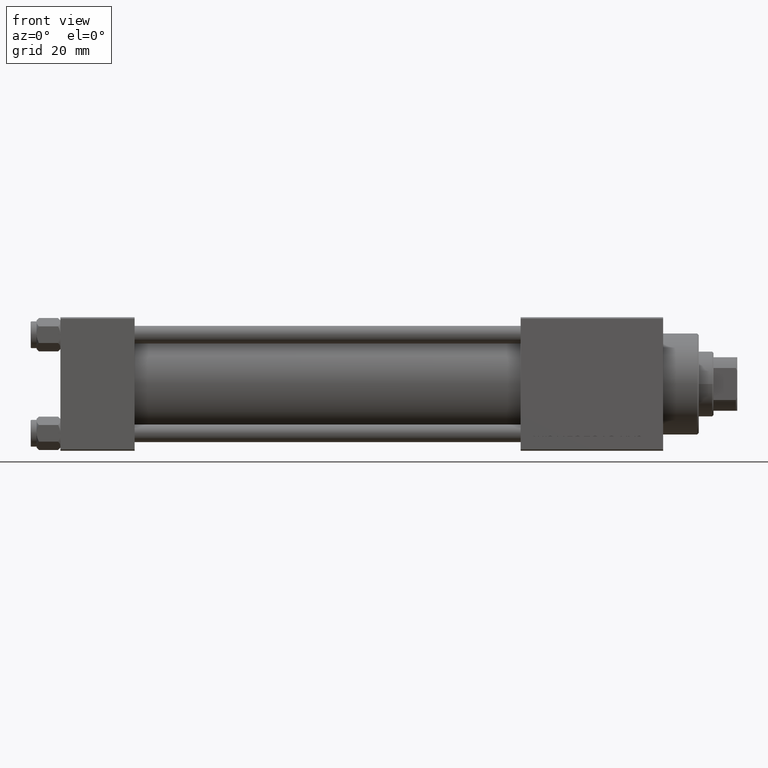
[diagram: clean part render]
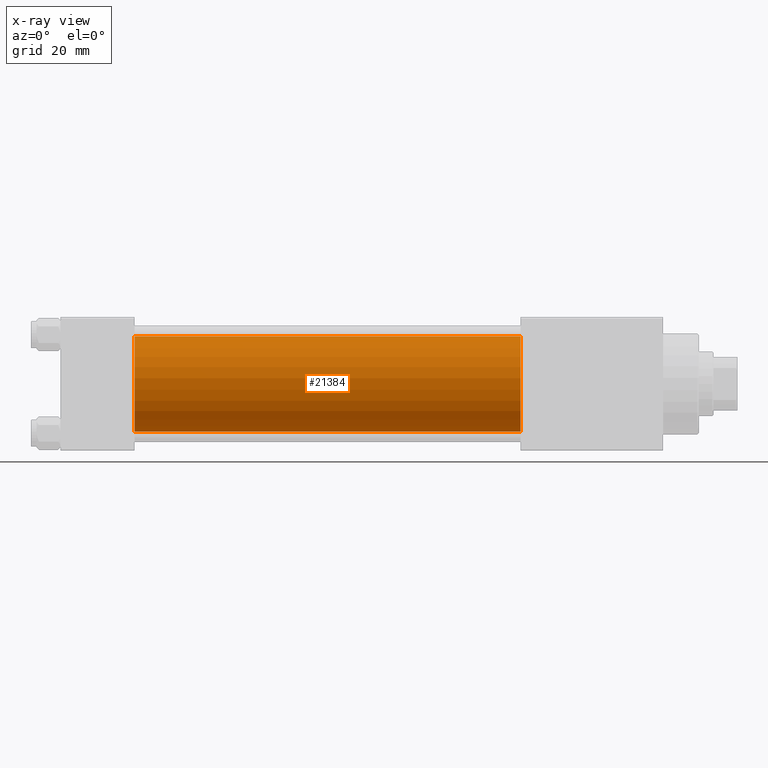
[diagram: x-ray — body ghosted, one internal face saturated and labeled with its STEP entity id]
A machine part, front view, then the same camera in x-ray: the body is ghosted and one INTERNAL B-rep face — a face not visible from any outside direction — is saturated and labeled: STEP entity #21384.
In plain terms, the highlighted cylindrical surface (partial cylindrical patch) has radius 16 mm, axis along (-1, -0, -0).
Its self-contained STEP definition (entity closure, byte-faithful):
#1622 = CIRCLE ( 'NONE', #6554, 16.00000000000000000 ) ;
#2418 = CARTESIAN_POINT ( 'NONE',  ( 25.00000000000000000, -6.426503353294456087E-16, -16.00000000000000000 ) ) ;
#3628 = CIRCLE ( 'NONE', #21837, 16.00000000000000000 ) ;
#5515 = VERTEX_POINT ( 'NONE', #2418 ) ;
#5754 = DIRECTION ( 'NONE',  ( 0.000000000000000000, 0.000000000000000000, 1.000000000000000000 ) ) ;
#6554 = AXIS2_PLACEMENT_3D ( 'NONE', #38940, #11443, #6777 ) ;
#6777 = DIRECTION ( 'NONE',  ( 0.000000000000000000, 0.000000000000000000, -1.000000000000000000 ) ) ;
#7490 = CARTESIAN_POINT ( 'NONE',  ( 25.00000000000000000, -2.602085213965210642E-15, 0.000000000000000000 ) ) ;
#7574 = EDGE_CURVE ( 'NONE', #38325, #13442, #31036, .T. ) ;
#7775 = ORIENTED_EDGE ( 'NONE', *, *, #20409, .T. ) ;
#10364 = DIRECTION ( 'NONE',  ( 1.000000000000000000, 0.000000000000000000, 0.000000000000000000 ) ) ;
#10675 = ORIENTED_EDGE ( 'NONE', *, *, #31807, .T. ) ;
#10874 = DIRECTION ( 'NONE',  ( 0.000000000000000000, 0.000000000000000000, -1.000000000000000000 ) ) ;
#11305 = CARTESIAN_POINT ( 'NONE',  ( 25.00000000000000000, -2.602085213965210642E-15, 16.00000000000000000 ) ) ;
#11443 = DIRECTION ( 'NONE',  ( 1.000000000000000000, 0.000000000000000000, 0.000000000000000000 ) ) ;
#13442 = VERTEX_POINT ( 'NONE', #11305 ) ;
#14351 = LINE ( 'NONE', #30183, #39512 ) ;
#15734 = ORIENTED_EDGE ( 'NONE', *, *, #7574, .F. ) ;
#16727 = EDGE_LOOP ( 'NONE', ( #10675, #7775, #25161, #15734 ) ) ;
#20409 = EDGE_CURVE ( 'NONE', #37368, #5515, #14351, .T. ) ;
#21384 = ADVANCED_FACE ( 'NONE', ( #41054 ), #25474, .F. ) ;
#21650 = VECTOR ( 'NONE', #51288, 1000.000000000000000 ) ;
#21837 = AXIS2_PLACEMENT_3D ( 'NONE', #7490, #10364, #10874 ) ;
#25161 = ORIENTED_EDGE ( 'NONE', *, *, #45349, .F. ) ;
#25474 = CYLINDRICAL_SURFACE ( 'NONE', #44374, 16.00000000000000000 ) ;
#29633 = DIRECTION ( 'NONE',  ( -1.000000000000000000, -0.000000000000000000, -0.000000000000000000 ) ) ;
#30183 = CARTESIAN_POINT ( 'NONE',  ( 155.0000000000000000, -6.426503353294456087E-16, -16.00000000000000000 ) ) ;
#30988 = CARTESIAN_POINT ( 'NONE',  ( 155.0000000000000000, -2.602085213965210642E-15, 16.00000000000000000 ) ) ;
#31036 = LINE ( 'NONE', #35435, #21650 ) ;
#31807 = EDGE_CURVE ( 'NONE', #38325, #37368, #1622, .T. ) ;
#35435 = CARTESIAN_POINT ( 'NONE',  ( 155.0000000000000000, -2.602085213965210642E-15, 16.00000000000000000 ) ) ;
#37368 = VERTEX_POINT ( 'NONE', #39464 ) ;
#38325 = VERTEX_POINT ( 'NONE', #30988 ) ;
#38940 = CARTESIAN_POINT ( 'NONE',  ( 155.0000000000000000, -2.602085213965210642E-15, 0.000000000000000000 ) ) ;
#39464 = CARTESIAN_POINT ( 'NONE',  ( 155.0000000000000000, -6.426503353294456087E-16, -16.00000000000000000 ) ) ;
#39512 = VECTOR ( 'NONE', #46009, 1000.000000000000000 ) ;
#41054 = FACE_OUTER_BOUND ( 'NONE', #16727, .T. ) ;
#41304 = CARTESIAN_POINT ( 'NONE',  ( 155.0000000000000000, -2.602085213965210642E-15, 0.000000000000000000 ) ) ;
#44374 = AXIS2_PLACEMENT_3D ( 'NONE', #41304, #29633, #5754 ) ;
#45349 = EDGE_CURVE ( 'NONE', #13442, #5515, #3628, .T. ) ;
#46009 = DIRECTION ( 'NONE',  ( -1.000000000000000000, -0.000000000000000000, -0.000000000000000000 ) ) ;
#51288 = DIRECTION ( 'NONE',  ( -1.000000000000000000, -0.000000000000000000, -0.000000000000000000 ) ) ;